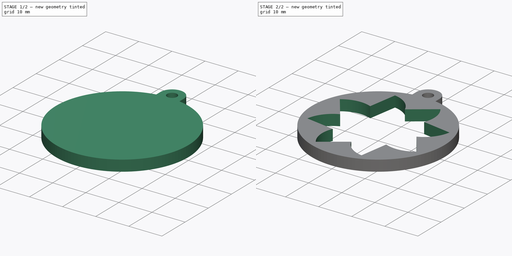
[diagram: build sequence overview — one tinted view per stage of 2, left to right]
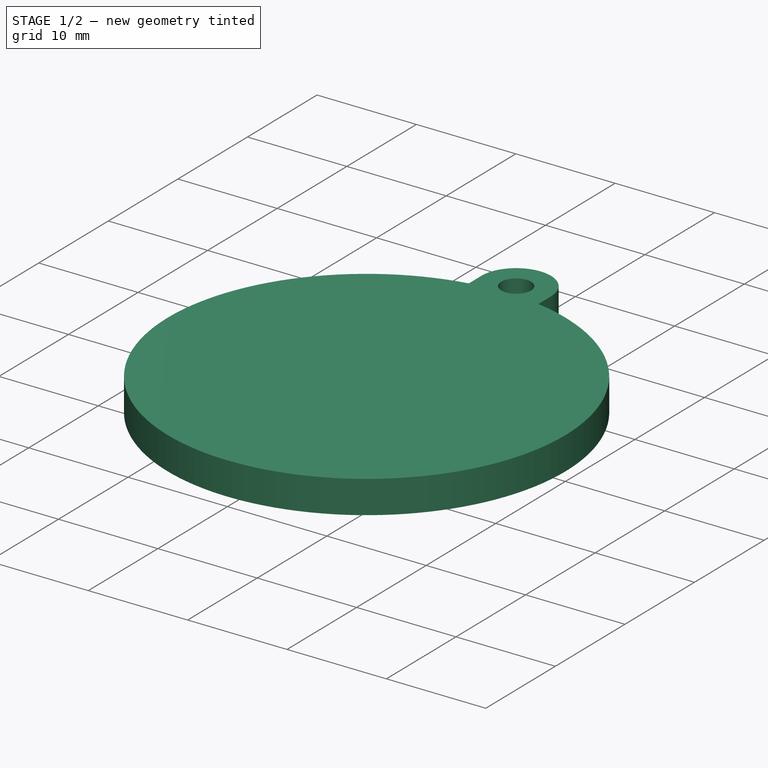
[diagram: stage 1 of 2 — iso view after this stage's code; geometry added in this stage tinted green]
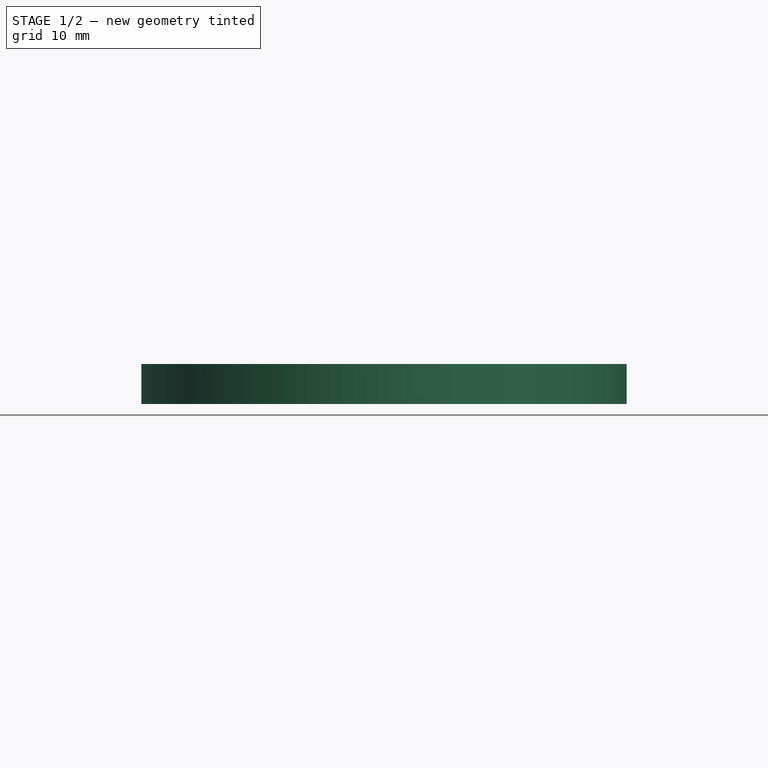
[diagram: stage 1 of 2 — front view after this stage's code; geometry added in this stage tinted green]
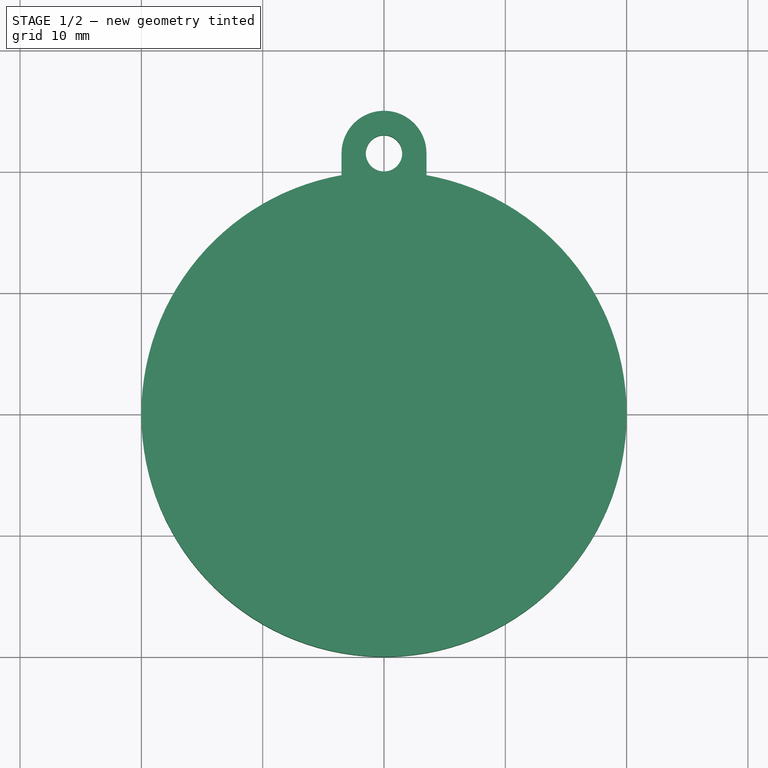
[diagram: stage 1 of 2 — top view after this stage's code; geometry added in this stage tinted green]
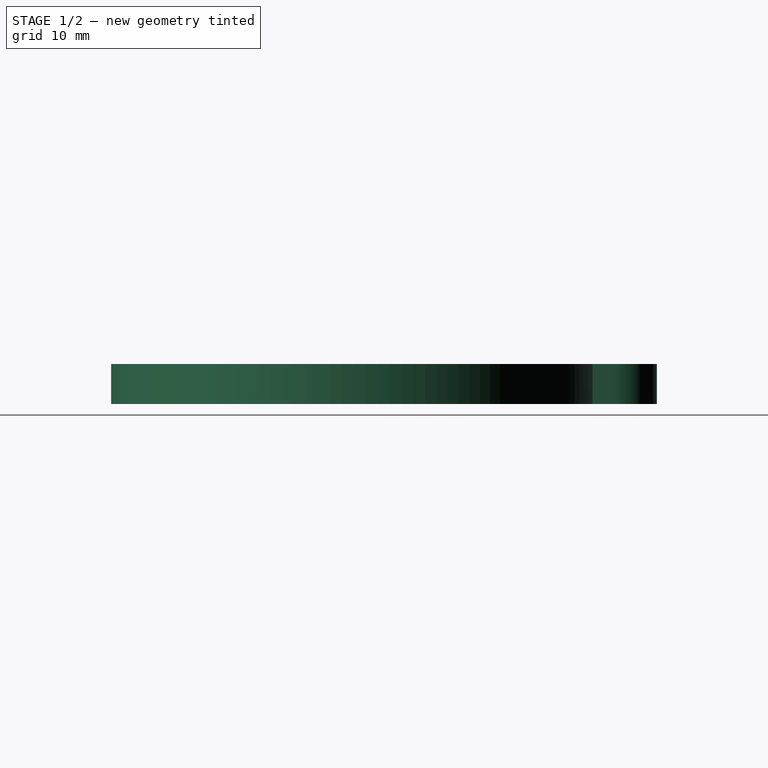
[diagram: stage 1 of 2 — right view after this stage's code; geometry added in this stage tinted green]
FCSTD DOCUMENT  (FreeCAD 0.16R6712 (Git))
Label: T5-ej3
License: CreativeCommons Attribution-ShareAlike
LicenseURL: http://creativecommons.org/licenses/by-sa/4.0/
objects: Sketcher::SketchObject×3, Part::Feature×2, App::DocumentObjectGroup×2, PartDesign::Pocket×2, Part::Extrusion×1
note: 10 computed .brp shape members not serialized (recipe doc carries the construction recipe); baked Part::Feature solids carry a one-line shape summary decoded from their .brp

FEATURE [Part::Feature] Sweep  label="key-ring-model-1"
  Placement = pos=(-1.2,30.2546,1.6391) rot=(0.333333,0.881918,0.333333;1.69612rad)
  shape: bbox 3.31 x 27.02 x 26.33 mm, 4 faces (baked)
FEATURE [Part::Feature] Cut  label="key-model-1"
  Placement = pos=(-5.46976,36.5266,0) rot=(0,0,1;0.517888rad)
  shape: bbox 49.82 x 36.6 x 2.3 mm, 44 faces (baked)
FEATURE [App::DocumentObjectGroup] Group  label="Assembly"
  Group = -> [Sweep,Cut]
FEATURE [Sketcher::SketchObject] Sketch
  sketch-geometry (7):
    g0: Circle [constr] CenterX=0 CenterY=21.5 CenterZ=0 NormalX=0 NormalY=0 NormalZ=1 Radius=1.5
    g1: LineSegment [constr] StartX=-3.5 StartY=21.5 StartZ=0 EndX=3.5 EndY=21.5 EndZ=0
    g2: ArcOfCircle CenterX=0 CenterY=21.5 CenterZ=0 NormalX=0 NormalY=0 NormalZ=1 Radius=3.5 StartAngle=0 EndAngle=3.14159
    g3: LineSegment StartX=-3.5 StartY=21.5 StartZ=0 EndX=-3.5 EndY=19.6914 EndZ=0
    g4: LineSegment [constr] StartX=-3.5 StartY=19.6914 StartZ=0 EndX=3.5 EndY=19.6914 EndZ=0
    g5: LineSegment StartX=3.5 StartY=19.6914 StartZ=0 EndX=3.5 EndY=21.5 EndZ=0
    g6: ArcOfCircle CenterX=0 CenterY=0 CenterZ=0 NormalX=0 NormalY=0 NormalZ=1 Radius=20 StartAngle=1.7467 EndAngle=7.67808
  constraints (22):
    c: Radius(g0) = 1.5
    c: Horizontal(g1)
    c: Symmetric(g1,g1,g-2)
    c: Coincident(g2,g0)
    c: PointOnObject(g0,g-2)
    c: PointOnObject(g0,g1)
    c: Coincident(g2,g1)
    c: Coincident(g2,g1)
    c: Radius(g2) = 3.5
    c: DistanceY(g-1,g0) = 21.5
    c: Vertical(g3)
    c: Coincident(g3,g4)
    c: Horizontal(g4)
    c: Coincident(g4,g5)
    c: Vertical(g5)
    c: Coincident(g3,g1)
    c: Coincident(g5,g1)
    c: Coincident(g6,g-1)
    c: Radius(g6) = 20
    c: PointOnObject(g3,g6)
    c: PointOnObject(g6,g4)
    c: PointOnObject(g6,g4)
FEATURE [Part::Extrusion] Extrude  label="casino-chip"
  Base = -> Sketch
  Dir = (0,0,3.3)
  Solid = true
FEATURE [Sketcher::SketchObject] Sketch001
  Placement = pos=(0,0,3.3) rot=(0,0,1;0rad)
  Support = -> Extrude [Face6]
  sketch-geometry (1):
    g0: Circle CenterX=0 CenterY=21.5 CenterZ=0 NormalX=0 NormalY=0 NormalZ=1 Radius=1.5
  constraints (3):
    c: DistanceY(g-1,g0) = 21.5
    c: PointOnObject(g0,g-2)
    c: Radius(g0) = 1.5
FEATURE [PartDesign::Pocket] Pocket  label="drill"
  Length = 5
  Sketch = -> Sketch001
  Type = 1
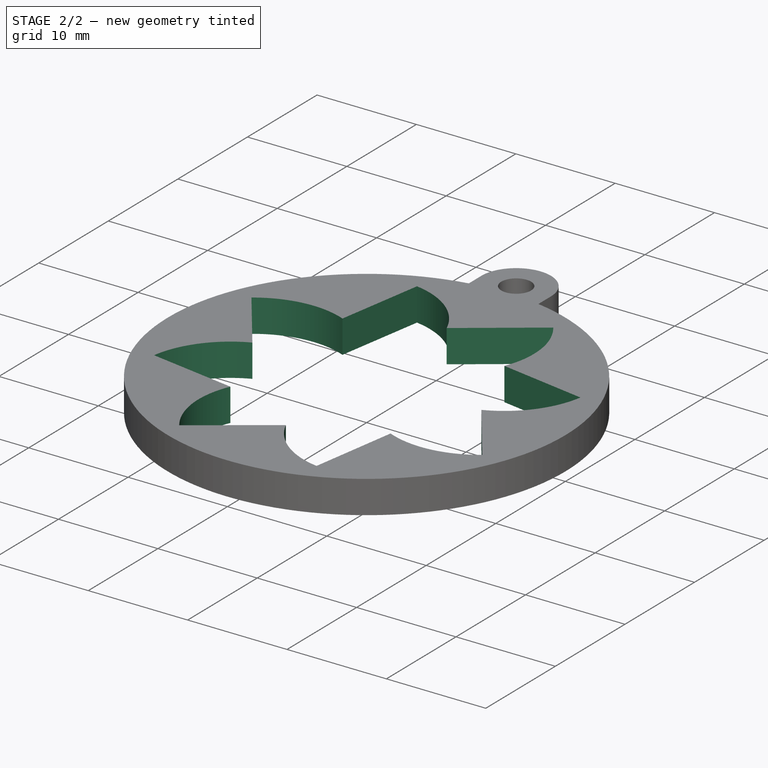
[diagram: stage 2 of 2 — iso view after this stage's code; geometry added in this stage tinted green]
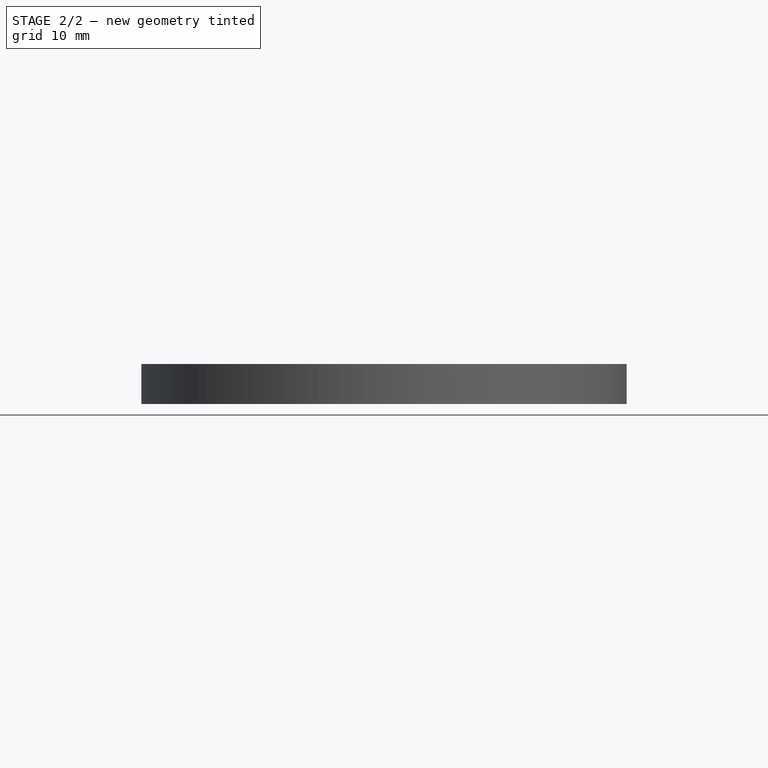
[diagram: stage 2 of 2 — front view after this stage's code; geometry added in this stage tinted green]
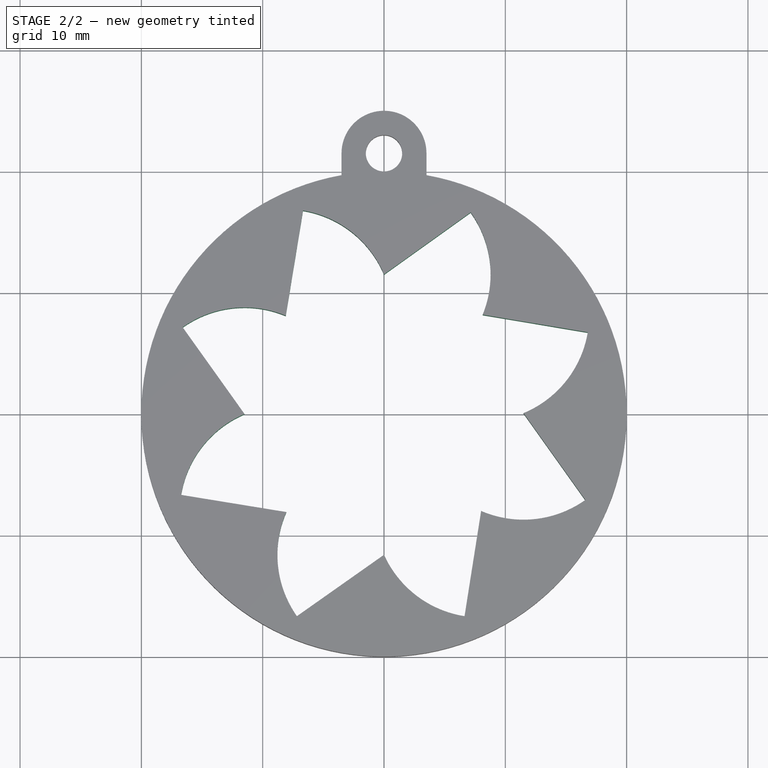
[diagram: stage 2 of 2 — top view after this stage's code; geometry added in this stage tinted green]
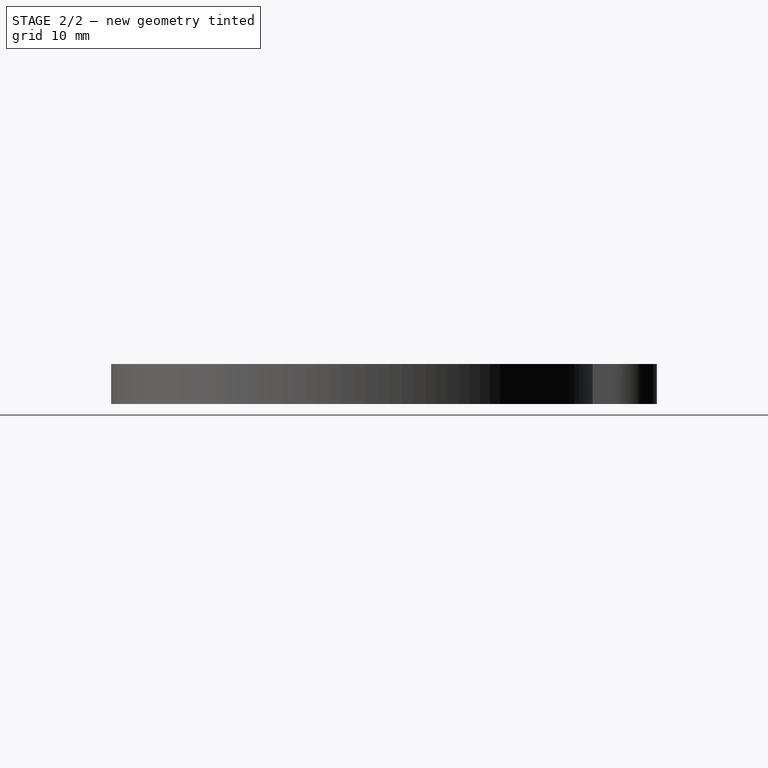
[diagram: stage 2 of 2 — right view after this stage's code; geometry added in this stage tinted green]
FEATURE [Sketcher::SketchObject] Sketch002  label="Flor octogonal"
  Placement = pos=(0,0,3.3) rot=(0,0,1;0rad)
  Support = -> Pocket [Face5]
  sketch-geometry (24):
    g0: LineSegment [constr] StartX=-7.18066 StartY=-16.6678 StartZ=0 EndX=6.63921 EndY=-16.6678 EndZ=0
    g1: LineSegment [constr] StartX=6.63921 StartY=-16.6678 StartZ=0 EndX=16.5953 EndY=-7.08315 EndZ=0
    g2: LineSegment [constr] StartX=16.5953 StartY=-7.08315 StartZ=0 EndX=16.7982 EndY=6.73522 EndZ=0
    g3: LineSegment [constr] StartX=16.7982 StartY=6.73522 StartZ=0 EndX=7.14403 EndY=16.6239 EndZ=0
    g4: LineSegment [constr] StartX=7.14403 StartY=16.6239 StartZ=0 EndX=-6.67503 EndY=16.7727 EndZ=0
    g5: LineSegment [constr] StartX=-6.67503 StartY=16.7727 StartZ=0 EndX=-16.5961 EndY=7.15187 EndZ=0
    g6: LineSegment [constr] StartX=-16.5961 StartY=7.15187 StartZ=0 EndX=-16.7191 EndY=-6.66744 EndZ=0
    g7: LineSegment [constr] StartX=-16.7191 StartY=-6.66744 StartZ=0 EndX=-7.18066 EndY=-16.6678 EndZ=0
    g8: ArcOfCircle CenterX=0 CenterY=11.5102 CenterZ=0 NormalX=0 NormalY=0 NormalZ=1 Radius=8.78564 StartAngle=5.89548 EndAngle=6.90444
    g9: ArcOfCircle CenterX=8.13357 CenterY=8.18865 CenterZ=0 NormalX=0 NormalY=0 NormalZ=1 Radius=8.78564 StartAngle=5.1054 EndAngle=6.11699
    g10: ArcOfCircle CenterX=11.4983 CenterY=0.0728361 CenterZ=0 NormalX=0 NormalY=0 NormalZ=1 Radius=8.78564 StartAngle=4.30371 EndAngle=5.3313
    g11: ArcOfCircle CenterX=8.00684 CenterY=-7.98927 CenterZ=0 NormalX=0 NormalY=0 NormalZ=1 Radius=8.78564 StartAngle=3.56583 EndAngle=4.55609
    g12: ArcOfCircle CenterX=0 CenterY=-11.6056 CenterZ=0 NormalX=0 NormalY=0 NormalZ=1 Radius=8.78564 StartAngle=2.7289 EndAngle=3.75565
    g13: ArcOfCircle CenterX=-8.04803 CenterY=-8.0819 CenterZ=0 NormalX=0 NormalY=0 NormalZ=1 Radius=8.78564 StartAngle=1.97377 EndAngle=2.97989
    g14: ArcOfCircle CenterX=-11.4934 CenterY=0 CenterZ=0 NormalX=0 NormalY=0 NormalZ=1 Radius=8.78564 StartAngle=1.17401 EndAngle=2.19052
    g15: ArcOfCircle CenterX=-8.09809 CenterY=8.10306 CenterZ=0 NormalX=0 NormalY=0 NormalZ=1 Radius=8.78564 StartAngle=0.398249 EndAngle=1.4081
    g16: LineSegment StartX=7.14403 StartY=16.6239 StartZ=0 EndX=0 EndY=11.5102 EndZ=0
    g17: LineSegment StartX=16.7982 StartY=6.73522 StartZ=0 EndX=8.13357 EndY=8.18865 EndZ=0
    g18: LineSegment StartX=16.5953 StartY=-7.08315 StartZ=0 EndX=11.4983 EndY=0.0728361 EndZ=0
    g19: LineSegment StartX=6.63921 StartY=-16.6678 StartZ=0 EndX=8.00684 EndY=-7.98927 EndZ=0
    g20: LineSegment StartX=0 StartY=-11.6056 StartZ=0 EndX=-7.18066 EndY=-16.6678 EndZ=0
    g21: LineSegment StartX=-8.04803 StartY=-8.0819 StartZ=0 EndX=-16.7191 EndY=-6.66744 EndZ=0
    g22: LineSegment StartX=-11.4934 StartY=0 StartZ=0 EndX=-16.5961 EndY=7.15187 EndZ=0
    g23: LineSegment StartX=-8.09809 StartY=8.10306 StartZ=0 EndX=-6.67503 EndY=16.7727 EndZ=0
  constraints (33):
    c: Coincident(g0,g1)
    c: Coincident(g1,g2)
    c: Coincident(g2,g3)
    c: Coincident(g3,g4)
    c: Coincident(g4,g5)
    c: Coincident(g5,g6)
    c: Coincident(g6,g7)
    c: Coincident(g7,g0)
    c: Equal(g0, g1-g7) x7
    c: Angle(g0,g-1) = 0
    c: Coincident(g8,g3)
    c: Coincident(g9,g2)
    c: Coincident(g10,g1)
    c: Coincident(g11,g0)
    c: Coincident(g12,g0)
    c: Coincident(g13,g6)
    c: Coincident(g14,g5)
    c: Coincident(g15,g4)
    c: Coincident(g17,g2)
    c: Coincident(g18,g1)
    c: Coincident(g19,g0)
    c: Coincident(g20,g0)
    c: Coincident(g21,g6)
    c: Coincident(g22,g5)
    c: PointOnObject(g8,g-2)
    c: PointOnObject(g15,g-2)
    c: PointOnObject(g16,g-2)
    c: Coincident(g3,g16)
    c: PointOnObject(g11,g-2)
    c: PointOnObject(g12,g-2)
    c: PointOnObject(g20,g-2)
    c: PointOnObject(g13,g-1)
    c: Coincident(g23,g4)
FEATURE [PartDesign::Pocket] Pocket001  label="Pocket flor octogonal"
  Length = 5
  Sketch = -> Sketch002
  Type = 0
FEATURE [App::DocumentObjectGroup] Group001  label="Casino-chip-src"
  Group = -> [Sketch,Pocket,Extrude,Pocket001]
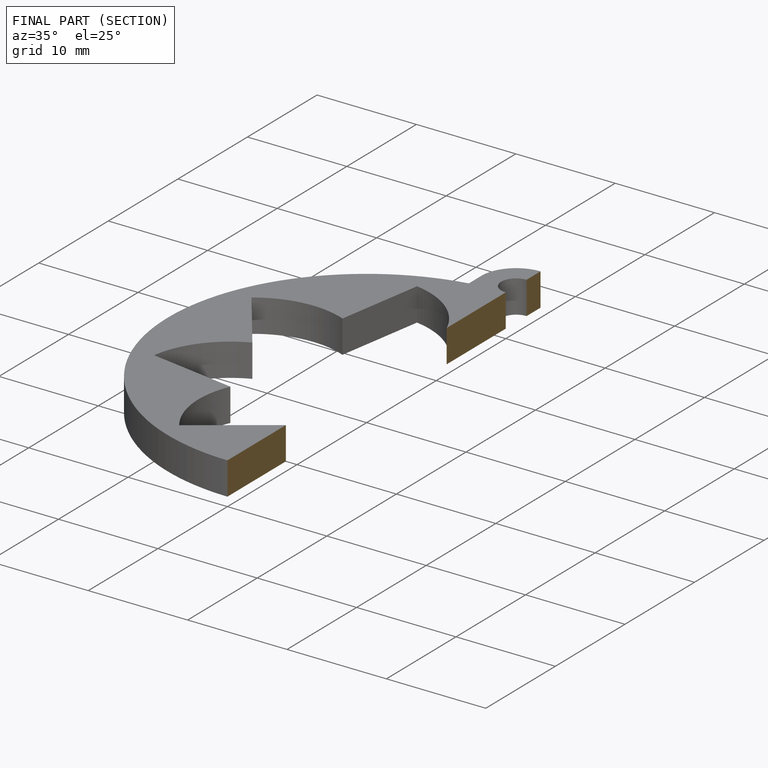
[diagram: finished part — half-section view (interior)]
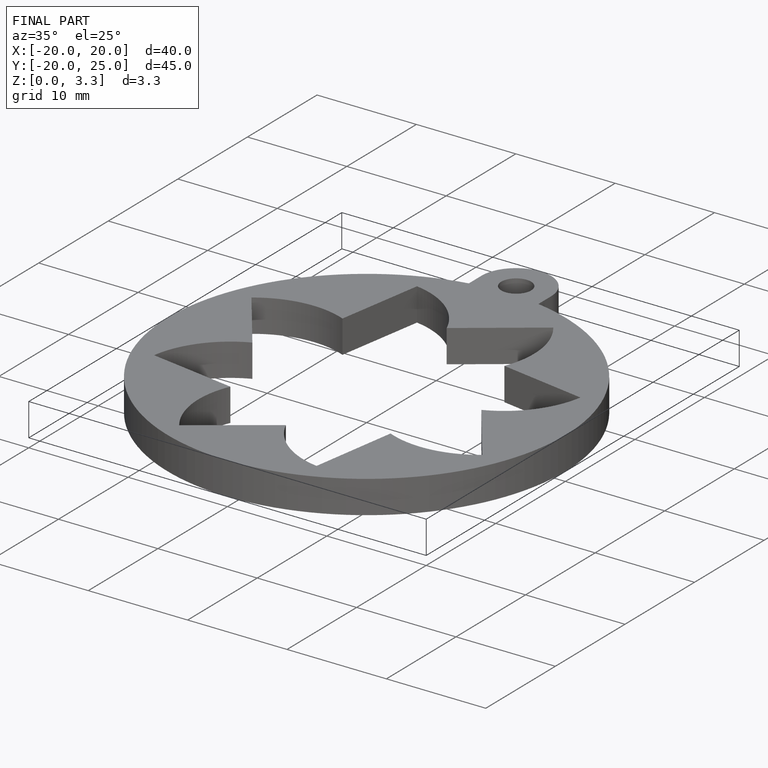
[diagram: finished part — iso view with bounding-box wireframe]
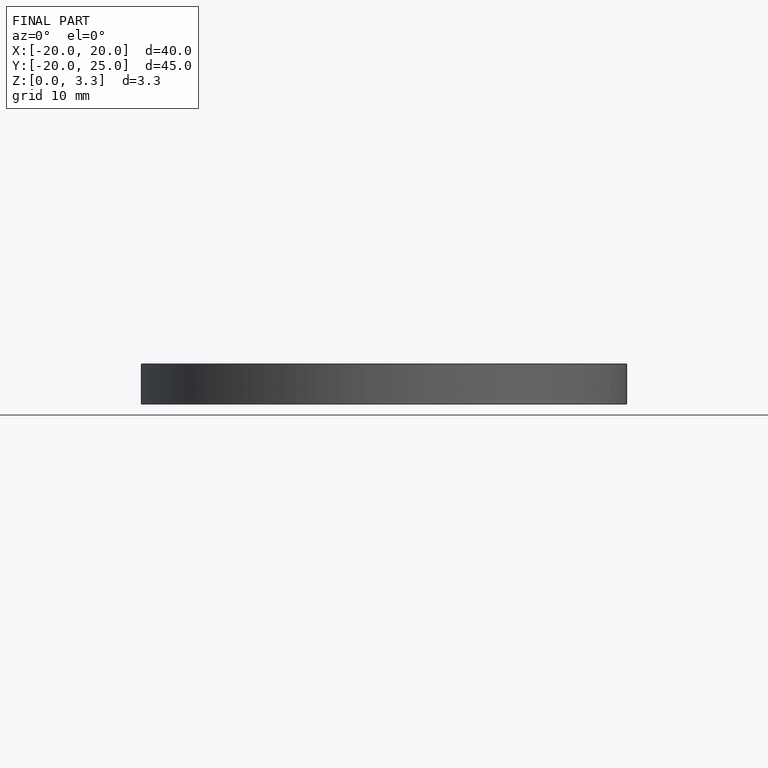
[diagram: finished part — front view with bounding-box wireframe]
